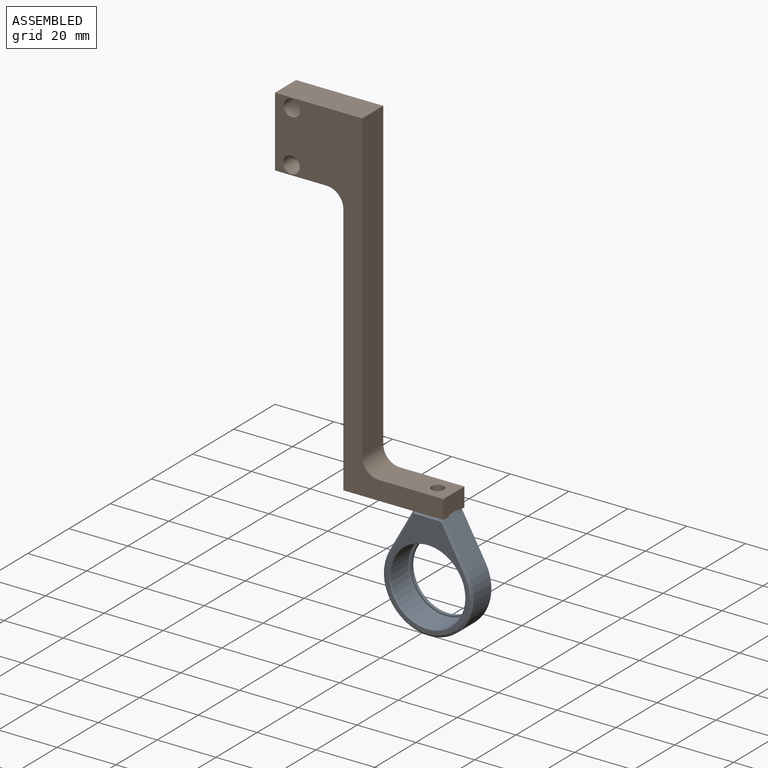
[diagram: assembled view]
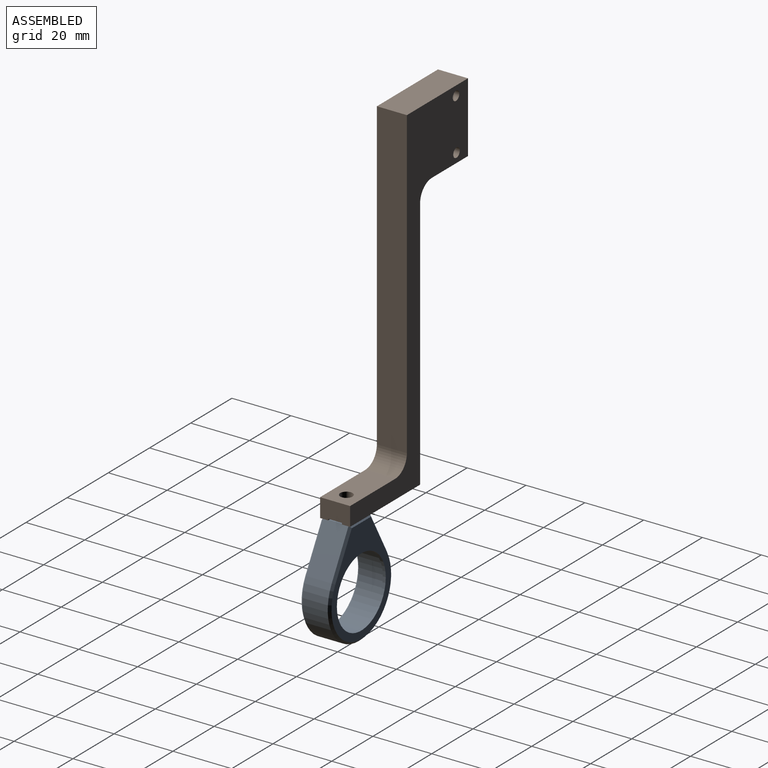
[diagram: assembled view, second angle]
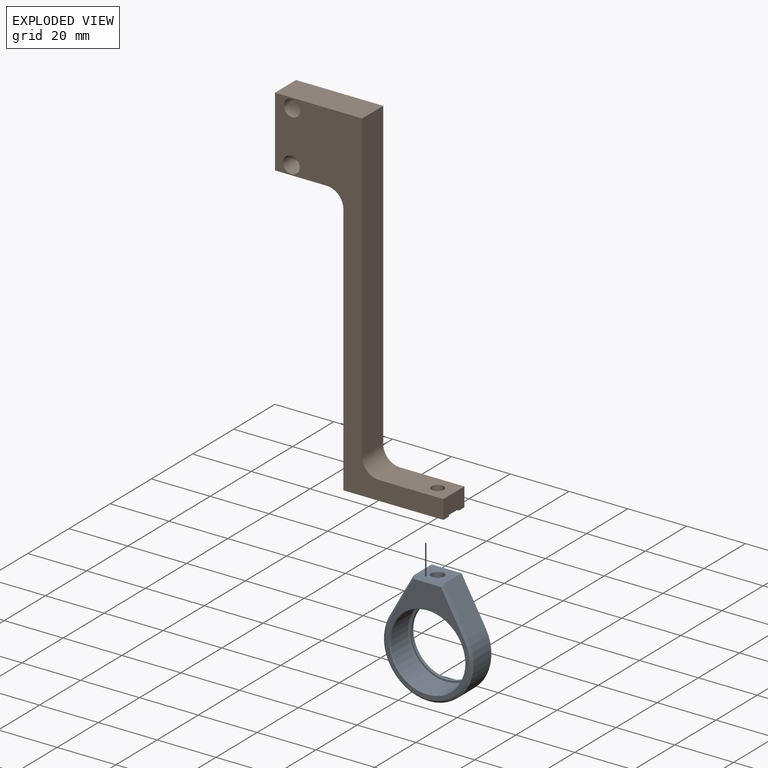
[diagram: exploded view]
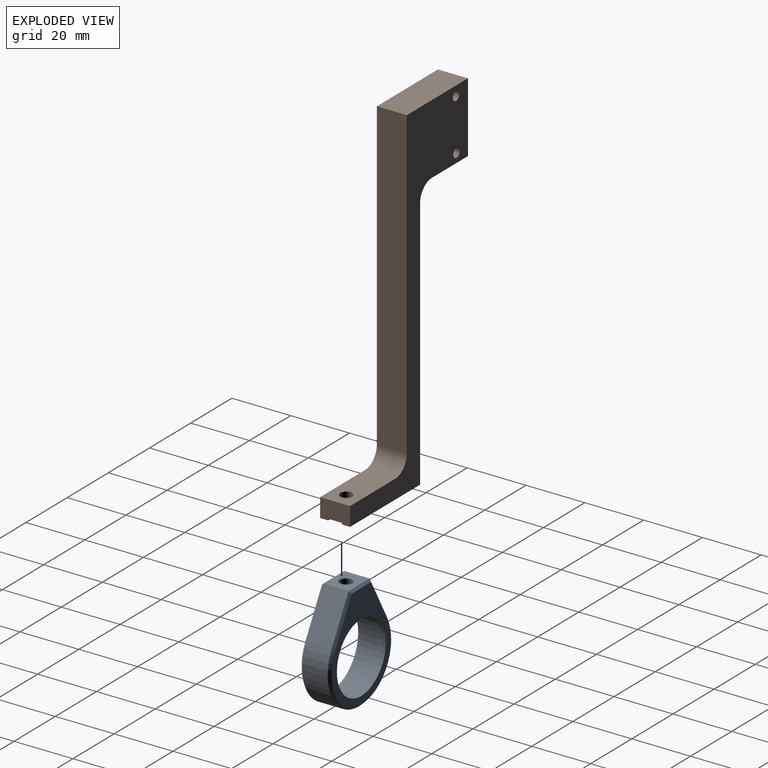
[diagram: exploded view, second angle]
ASSEMBLY  parts=2 mates=2
PART A: 222 faces, bbox 30.5x10.2x37.3 mm
  f0: plane 6.2x1.93mm, normal (0,-1,0), area 6.9mm2, adj f90,f91,f92,f93,f94,f95,f96,f97
  f1: plane 35.81x28.96mm, normal (0,-1,0), area 219.6mm2, adj f10,f11,f12,f13,f14,f15,f17,f18
  f2: cylinder r=11.87mm len=23.75mm, axis (0,-1,0), area 75.8mm2, adj f7,f8
  f3: plane 14.64x8.64mm, normal (0.87,0,-0.49), area 145mm2, adj f4,f6,f213,f217
  f4: plane 10.16x8.64mm, normal (0,0,-1), area 70.6mm2, adj f3,f5,f215,f219,f221
  f5: plane 14.64x8.64mm, normal (-0.87,0,-0.49), area 145mm2, adj f4,f6,f214,f218
  f6: cylinder r=15.24mm len=30.48mm, axis (0,-1,0), area 548mm2, adj f3,f5,f212,f216
  f7: plane 35.81x28.96mm, normal (0,1,0), area 328.9mm2, adj f2,f212,f213,f214,f215
  f8: plane 24.66x24.66mm, normal (0,-1,0), area 34.6mm2, adj f2,f211
  f9: cylinder r=12.71mm len=25.42mm, axis (0,-1,0), area 664.7mm2, adj f211,f220
  f10: plane 1.91x0.01mm, normal (1,0,0), area 0mm2, adj f1,f11,f15,f16
  f11: plane 0.17x0.01mm, normal (0,0,-1), area 0mm2, adj f1,f10,f12,f16
  f12: plane 1.71x0.01mm, normal (-1,0,0), area 0mm2, adj f1,f11,f13,f16
  f13: plane 0.73x0.01mm, normal (0,0,-1), area 0mm2, adj f1,f12,f14,f16
  f14: plane 0.2x0.01mm, normal (-1,0,0), area 0mm2, adj f1,f13,f15,f16
  f15: plane 0.9x0.01mm, normal (0,0,1), area 0mm2, adj f1,f10,f14,f16
  f16: plane 1.91x0.9mm, normal (0,-1,0), area 0.5mm2, adj f10,f11,f12,f13,f14,f15
  f17: plane 0.17x0.01mm, normal (0,0,1), area 0mm2, adj f1,f18,f29,f30
  f18: plane 1.91x0.25mm, normal (0.99,0,-0.13), area 0mm2, adj f1,f17,f19,f30
  f19: plane 0.02x0.01mm, normal (0,0,-1), area 0mm2, adj f1,f18,f20,f30
  f20: plane 1.56x0.79mm, normal (-0.89,0,-0.45), area 0mm2, adj f1,f19,f21,f30
  f21: plane 1.56x0.78mm, normal (0.89,0,-0.45), area 0mm2, adj f1,f20,f22,f30
  f22: plane 0.03x0.01mm, normal (0,0,-1), area 0mm2, adj f1,f21,f23,f30
  f23: plane 1.91x0.25mm, normal (-0.99,0,-0.13), area 0mm2, adj f1,f22,f24,f30
  f24: plane 0.17x0.01mm, normal (0,0,1), area 0mm2, adj f1,f23,f25,f30
  f25: plane 1.37x0.18mm, normal (0.99,0,0.13), area 0mm2, adj f1,f24,f26,f30
  f26: plane 1.37x0.69mm, normal (-0.89,0,0.45), area 0mm2, adj f1,f25,f27,f30
  f27: plane 0.04x0.01mm, normal (0,0,1), area 0mm2, adj f1,f26,f28,f30
  f28: plane 1.37x0.69mm, normal (0.89,0,0.45), area 0mm2, adj f1,f27,f29,f30
  f29: plane 1.37x0.18mm, normal (-0.99,0,0.13), area 0mm2, adj f1,f17,f28,f30
  f30: plane 2.13x1.91mm, normal (0,-1,0), area 1.1mm2, adj f17,f18,f19,f20,f21,f22,f23,f24
  f31: plane 1.91x0.01mm, normal (1,0,0), area 0mm2, adj f1,f32,f41,f42
  f32: plane 0.38x0.01mm, normal (0,0,-1), area 0mm2, adj f1,f31,f33,f42
  f33: extruded ~0.43x0.03mm, area 0mm2, adj f1,f32,f34,f42
  f34: extruded ~0.48x0.38mm, area 0mm2, adj f1,f33,f35,f42
  f35: extruded ~0.68x0.52mm, area 0mm2, adj f1,f34,f36,f42
  f36: plane 0.88x0.7mm, normal (-0.78,0,-0.62), area 0mm2, adj f1,f35,f37,f42
  f37: plane 0.21x0.01mm, normal (0,0,1), area 0mm2, adj f1,f36,f38,f42
  f38: plane 0.88x0.7mm, normal (0.78,0,0.62), area 0mm2, adj f1,f37,f39,f42
  f39: plane 0.14x0.01mm, normal (0,0,1), area 0mm2, adj f1,f38,f40,f42
  f40: plane 0.88x0.01mm, normal (-1,0,0), area 0mm2, adj f1,f39,f41,f42
  f41: plane 0.17x0.01mm, normal (0,0,1), area 0mm2, adj f1,f31,f40,f42
  f42: plane 1.91x1.22mm, normal (0,-1,0), area 1mm2, adj f31,f32,f33,f34,f35,f36,f37,f38
  f43: plane 0.36x0.01mm, normal (0,0,1), area 0mm2, adj f42,f44,f47,f48
  f44: extruded ~0.5x0.31mm, area 0mm2, adj f42,f43,f45,f48
  f45: extruded ~0.51x0.32mm, area 0mm2, adj f42,f44,f46,f48
  f46: plane 0.35x0.01mm, normal (-0.01,0,-1), area 0mm2, adj f42,f45,f47,f48
  f47: plane 0.64x0.01mm, normal (-1,0,0), area 0mm2, adj f42,f43,f46,f48
  f48: plane 0.86x0.64mm, normal (0,-1,0), area 0.5mm2, adj f43,f44,f45,f46,f47
  f49: plane 0.2x0.11mm, normal (0.87,0,-0.5), area 0mm2, adj f1,f50,f54,f55
  f50: plane 0.35x0.01mm, normal (0,0,-1), area 0mm2, adj f1,f49,f51,f55
  f51: plane 1.91x0.01mm, normal (-1,0,0), area 0mm2, adj f1,f50,f52,f55
  f52: plane 0.17x0.01mm, normal (0,0,1), area 0mm2, adj f1,f51,f53,f55
  f53: plane 1.71x0.01mm, normal (1,0,0), area 0mm2, adj f1,f52,f54,f55
  f54: plane 0.29x0.01mm, normal (0,0,1), area 0mm2, adj f1,f49,f53,f55
  f55: plane 1.91x0.46mm, normal (0,-1,0), area 0.4mm2, adj f49,f50,f51,f52,f53,f54
  f56: plane 2.03x0mm, normal (-1,0,0), area 0mm2, adj f1,f57,f73,f74
  f57: plane 0.53x0mm, normal (0,0,1), area 0mm2, adj f1,f56,f58,f74
  f58: plane 0.84x0mm, normal (1,0,0), area 0mm2, adj f1,f57,f59,f74
  f59: plane 0.7x0mm, normal (0,0,1), area 0mm2, adj f1,f58,f60,f74
  f60: plane 0.84x0mm, normal (-1,0,0), area 0mm2, adj f1,f59,f61,f74
  f61: plane 0.53x0mm, normal (0,0,1), area 0mm2, adj f1,f60,f62,f74
  f62: plane 1.58x0mm, normal (1,0,0), area 0mm2, adj f1,f61,f63,f74
  f63: plane 0.55x0mm, normal (0,0,1), area 0mm2, adj f1,f62,f64,f74
  f64: plane 1.58x0mm, normal (-1,0,0), area 0mm2, adj f1,f63,f65,f74
  f65: plane 0.53x0mm, normal (0,0,1), area 0mm2, adj f1,f64,f66,f74
  f66: plane 1.58x0mm, normal (1,0,0), area 0mm2, adj f1,f65,f67,f74
  f67: plane 0.61x0mm, normal (0,0,1), area 0mm2, adj f1,f66,f68,f74
  f68: plane 0.46x0mm, normal (1,0,0), area 0mm2, adj f1,f67,f69,f74
  f69: plane 2.22x0mm, normal (0,0,-1), area 0mm2, adj f1,f68,f70,f74
  f70: plane 0.74x0mm, normal (-1,0,0), area 0mm2, adj f1,f69,f71,f74
  f71: plane 0.7x0mm, normal (0,0,-1), area 0mm2, adj f1,f70,f72,f74
  f72: plane 0.74x0mm, normal (1,0,0), area 0mm2, adj f1,f71,f73,f74
  f73: plane 0.53x0mm, normal (0,0,-1), area 0mm2, adj f1,f56,f72,f74
  f74: plane 3.45x2.03mm, normal (0,-1,0), area 4.1mm2, adj f56,f57,f58,f59,f60,f61,f62,f63
  f75: extruded ~0.6x0.47mm, area 0mm2, adj f76,f82,f83,f84
  f76: extruded ~0.6x0.47mm, area 0mm2, adj f75,f77,f83,f84
  f77: extruded ~0.6x0.47mm, area 0mm2, adj f76,f82,f83,f84
  f78: extruded ~1.02x1.01mm, area 0mm2, adj f1,f79,f81,f83
  f79: extruded ~1.02x1mm, area 0mm2, adj f1,f78,f80,f83
  f80: extruded ~1.02x1mm, area 0mm2, adj f1,f79,f81,f83
  f81: extruded ~1.01x1mm, area 0mm2, adj f1,f78,f80,f83
  f82: extruded ~0.6x0.47mm, area 0mm2, adj f75,f77,f83,f84
  f83: plane 2.03x2.01mm, normal (0,-1,0), area 2.3mm2, adj f75,f76,f77,f78,f79,f80,f81,f82
  f84: plane 1.21x0.95mm, normal (0,-1,0), area 0.9mm2, adj f75,f76,f77,f82
  f85: extruded ~0.26x0.09mm, area 0mm2, adj f86,f168,f169,f173
  f86: extruded ~0.44x0.19mm, area 0mm2, adj f85,f168,f169,f173
  f87: extruded ~0.15x0.09mm, area 0mm2, adj f88,f163,f169,f172
  f88: extruded ~0.16x0.04mm, area 0mm2, adj f87,f89,f169,f172
  f89: extruded ~0.32x0.13mm, area 0mm2, adj f88,f163,f169,f172
  f90: extruded ~0.53x0.53mm, area 0mm2, adj f0,f91,f164,f169
  f91: extruded ~0.53x0.24mm, area 0mm2, adj f0,f90,f92,f169
  f92: extruded ~0.23x0.16mm, area 0mm2, adj f0,f91,f93,f169
  f93: extruded ~0.3x0.22mm, area 0mm2, adj f0,f92,f94,f169
  f94: plane 0.48x0mm, normal (0,0,-1), area 0mm2, adj f0,f93,f95,f169
  f95: extruded ~0.74x0.59mm, area 0mm2, adj f0,f94,f96,f169
  f96: extruded ~0.75x0.56mm, area 0mm2, adj f0,f95,f97,f169
  f97: extruded ~0.54x0.53mm, area 0mm2, adj f0,f96,f98,f169
  f98: extruded ~0.53x0.27mm, area 0mm2, adj f0,f97,f99,f169
  f99: extruded ~0.29x0.19mm, area 0mm2, adj f0,f98,f100,f169
  f100: extruded ~0.35x0.28mm, area 0mm2, adj f0,f99,f101,f169
  f101: plane 0.46x0mm, normal (0,0,1), area 0mm2, adj f0,f100,f102,f169
  f102: cylinder r=0.43mm len=0.39mm, axis (0,1,0), area 0mm2, adj f0,f101,f103,f169
  f103: extruded ~0.37x0.24mm, area 0mm2, adj f0,f102,f104,f169
  f104: extruded ~0.66x0.46mm, area 0mm2, adj f0,f103,f105,f169
  f105: plane 0.86x0mm, normal (0,0,1), area 0mm2, adj f0,f104,f106,f169
  f106: plane 1.71x0mm, normal (-1,0,0), area 0mm2, adj f0,f105,f107,f169
  f107: plane 1.71x0.65mm, normal (0.94,0,0.35), area 0mm2, adj f0,f106,f108,f169
  f108: plane 0.49x0mm, normal (0,0,1), area 0mm2, adj f0,f107,f109,f169
  f109: plane 1.42x0.53mm, normal (-0.94,0,0.35), area 0mm2, adj f0,f108,f110,f169
  f110: plane 0.88x0mm, normal (0,0,1), area 0mm2, adj f0,f109,f111,f169
  f111: plane 1.42x0mm, normal (1,0,0), area 0mm2, adj f0,f110,f112,f169
  f112: plane 0.48x0mm, normal (0,0,1), area 0mm2, adj f0,f111,f113,f169
  f113: plane 1.83x0mm, normal (-1,0,0), area 0mm2, adj f0,f112,f114,f169
  f114: plane 1.7x0mm, normal (0,0,-1), area 0mm2, adj f0,f113,f115,f169
  f115: plane 0.31x0.14mm, normal (0.91,0,-0.41), area 0mm2, adj f0,f114,f116,f169
  f116: plane 0.59x0mm, normal (0,0,-1), area 0mm2, adj f0,f115,f117,f169
  f117: plane 0.31x0.14mm, normal (-0.92,0,-0.4), area 0mm2, adj f0,f116,f118,f169
  f118: plane 1.34x0mm, normal (0,0,-1), area 0mm2, adj f0,f117,f119,f169
  f119: extruded ~0.71x0.47mm, area 0mm2, adj f0,f118,f120,f169
  f120: extruded ~0.78x0.53mm, area 0mm2, adj f0,f119,f164,f169
  f121: extruded ~0.16x0.11mm, area 0mm2, adj f122,f165,f169,f171
  f122: extruded ~0.31x0.2mm, area 0mm2, adj f121,f123,f169,f171
  f123: plane 0.46x0mm, normal (0,0,-1), area 0mm2, adj f122,f124,f169,f171
  f124: plane 0.09x0.03mm, normal (0.27,0,0.96), area 0mm2, adj f123,f165,f169,f171
  f125: extruded ~0.27x0.22mm, area 0mm2, adj f126,f166,f169,f170
  f126: plane 0.42x0mm, normal (0,0,1), area 0mm2, adj f125,f127,f169,f170
  f127: plane 0.46x0mm, normal (-1,0,0), area 0mm2, adj f126,f128,f169,f170
  f128: plane 0.45x0mm, normal (0,0,-1), area 0mm2, adj f127,f166,f169,f170
  f129: extruded ~0.42x0.3mm, area 0mm2, adj f1,f130,f167,f169
  f130: plane 0.4x0mm, normal (0,0,1), area 0mm2, adj f1,f129,f131,f169
  f131: plane 0.74x0mm, normal (-1,0,0), area 0mm2, adj f1,f130,f132,f169
  f132: plane 0.53x0mm, normal (0,0,1), area 0mm2, adj f1,f131,f133,f169
  f133: plane 2.03x0mm, normal (1,0,0), area 0mm2, adj f1,f132,f134,f169
  f134: plane 1.04x0mm, normal (0,0,-1), area 0mm2, adj f1,f133,f135,f169
  f135: extruded ~0.71x0.57mm, area 0mm2, adj f1,f134,f136,f169
  f136: extruded ~0.51x0.32mm, area 0mm2, adj f1,f135,f137,f169
  f137: plane 0.01x0mm, normal (-1,0,0), area 0mm2, adj f1,f136,f138,f169
  f138: extruded ~0.49x0.3mm, area 0mm2, adj f1,f137,f139,f169
  f139: extruded ~0.36x0.05mm, area 0mm2, adj f1,f138,f140,f169
  f140: plane 1.94x0mm, normal (1,0,0), area 0mm2, adj f1,f139,f141,f169
  f141: plane 0.69x0mm, normal (0,0,-1), area 0mm2, adj f1,f140,f142,f169
  f142: plane 1.45x0mm, normal (-1,0,0), area 0mm2, adj f1,f141,f143,f169
  f143: plane 0.7x0mm, normal (0,0,-1), area 0mm2, adj f1,f142,f144,f169
  f144: plane 1.45x0.55mm, normal (0.94,0,-0.35), area 0mm2, adj f1,f143,f145,f169
  f145: plane 0.63x0mm, normal (0,0,-1), area 0mm2, adj f1,f144,f146,f169
  f146: plane 1.27x0.47mm, normal (-0.94,0,-0.35), area 0mm2, adj f1,f145,f147,f169
  f147: plane 1.27x0mm, normal (1,0,0), area 0mm2, adj f1,f146,f148,f169
  f148: plane 0.9x0mm, normal (0,0,-1), area 0mm2, adj f1,f147,f149,f169
  f149: extruded ~0.79x0.37mm, area 0mm2, adj f1,f148,f150,f169
  f150: extruded ~0.78x0.39mm, area 0mm2, adj f1,f149,f151,f169
  f151: extruded ~0.85x0.77mm, area 0mm2, adj f1,f150,f152,f169
  f152: plane 0.56x0mm, normal (0,0,1), area 0mm2, adj f1,f151,f153,f169
  f153: plane 0.01x0mm, normal (-0.25,0,-0.97), area 0mm2, adj f1,f152,f154,f169
  f154: extruded ~0.64x0.6mm, area 0mm2, adj f1,f153,f155,f169
  f155: extruded ~0.86x0.69mm, area 0mm2, adj f1,f154,f156,f169
  f156: extruded ~0.82x0.38mm, area 0mm2, adj f1,f155,f157,f169
  f157: extruded ~0.6x0.32mm, area 0mm2, adj f1,f156,f158,f169
  f158: plane 1.52x0mm, normal (0,0,1), area 0mm2, adj f1,f157,f159,f169
  f159: plane 0.3x0.12mm, normal (0.93,0,0.36), area 0mm2, adj f1,f158,f160,f169
  f160: plane 0.49x0mm, normal (0,0,1), area 0mm2, adj f1,f159,f161,f169
  f161: plane 0.3x0.12mm, normal (-0.93,0,0.37), area 0mm2, adj f1,f160,f162,f169
  f162: plane 2.37x0mm, normal (0,0,1), area 0mm2, adj f1,f161,f167,f169
  f163: cylinder r=0.42mm len=0.08mm, axis (0,1,0), area 0mm2, adj f87,f89,f169,f172
  f164: extruded ~0.8x0.64mm, area 0mm2, adj f0,f90,f120,f169
  f165: extruded ~0.46x0.45mm, area 0mm2, adj f121,f124,f169,f171
  f166: extruded ~0.25x0.24mm, area 0mm2, adj f125,f128,f169,f170
  f167: extruded ~0.32x0.06mm, area 0mm2, adj f1,f129,f162,f169
  f168: extruded ~0.26x0.18mm, area 0mm2, adj f85,f86,f169,f173
  f169: plane 8.19x2.11mm, normal (0,-1,0), area 5.3mm2, adj f85,f86,f87,f88,f89,f90,f91,f92
  f170: plane 0.69x0.46mm, normal (0,-1,0), area 0.3mm2, adj f125,f126,f127,f128,f166
  f171: plane 0.66x0.47mm, normal (0,-1,0), area 0.1mm2, adj f121,f122,f123,f124,f165
  f172: plane 0.32x0.17mm, normal (0,-1,0), area 0mm2, adj f87,f88,f89,f163
  f173: plane 0.45x0.3mm, normal (0,-1,0), area 0.1mm2, adj f85,f86,f168
  f174: plane 0.55x0mm, normal (0,0,1), area 0mm2, adj f0,f175,f180,f181
  f175: plane 0.73x0.24mm, normal (0.95,0,-0.31), area 0mm2, adj f0,f174,f176,f181
  f176: plane 0.07x0mm, normal (0,0,-1), area 0mm2, adj f0,f175,f180,f181
  f177: plane 0.44x0.14mm, normal (-0.95,0,0.31), area 0mm2, adj f178,f179,f181,f182
  f178: plane 0.28x0mm, normal (0,0,-1), area 0mm2, adj f177,f179,f181,f182
  f179: plane 0.44x0.14mm, normal (0.95,0,0.3), area 0mm2, adj f177,f178,f181,f182
  f180: plane 0.73x0.23mm, normal (-0.95,0,-0.3), area 0mm2, adj f0,f174,f176,f181
  f181: plane 0.73x0.55mm, normal (0,-1,0), area 0.2mm2, adj f174,f175,f176,f177,f178,f179,f180
  f182: plane 0.44x0.28mm, normal (0,-1,0), area 0.1mm2, adj f177,f178,f179
  f183: extruded ~0.22x0.22mm, area 0mm2, adj f0,f184,f192,f193
  f184: plane 0.43x0mm, normal (0,0,1), area 0mm2, adj f0,f183,f185,f193
  f185: plane 0.44x0mm, normal (1,0,0), area 0mm2, adj f0,f184,f186,f193
  f186: plane 0.43x0mm, normal (0,0,-1), area 0mm2, adj f0,f185,f192,f193
  f187: extruded ~0.16x0.13mm, area 0mm2, adj f188,f191,f193,f194
  f188: plane 0.3x0mm, normal (0,0,1), area 0mm2, adj f187,f189,f193,f194
  f189: plane 0.26x0mm, normal (-1,0,0), area 0mm2, adj f188,f190,f193,f194
  f190: plane 0.3x0mm, normal (0,0,-1), area 0mm2, adj f189,f191,f193,f194
  f191: extruded ~0.16x0.13mm, area 0mm2, adj f187,f190,f193,f194
  f192: extruded ~0.22x0.22mm, area 0mm2, adj f0,f183,f186,f193
  f193: plane 0.65x0.44mm, normal (0,-1,0), area 0.2mm2, adj f183,f184,f185,f186,f187,f188,f189,f190
  f194: plane 0.45x0.26mm, normal (0,-1,0), area 0.1mm2, adj f187,f188,f189,f190,f191
  f195: extruded ~0.25x0.25mm, area 0mm2, adj f0,f196,f204,f205
  f196: plane 0.47x0mm, normal (0,0,1), area 0mm2, adj f0,f195,f197,f205
  f197: plane 0.51x0mm, normal (1,0,0), area 0mm2, adj f0,f196,f198,f205
  f198: plane 0.47x0mm, normal (0,0,-1), area 0mm2, adj f0,f197,f204,f205
  f199: extruded ~0.19x0.17mm, area 0mm2, adj f200,f203,f205,f206
  f200: plane 0.36x0mm, normal (0,0,1), area 0mm2, adj f199,f201,f205,f206
  f201: plane 0.33x0mm, normal (-1,0,0), area 0mm2, adj f200,f202,f205,f206
  f202: plane 0.36x0mm, normal (0,0,-1), area 0mm2, adj f201,f203,f205,f206
  f203: extruded ~0.19x0.16mm, area 0mm2, adj f199,f202,f205,f206
  f204: extruded ~0.26x0.25mm, area 0mm2, adj f0,f195,f198,f205
  f205: plane 0.72x0.51mm, normal (0,-1,0), area 0.2mm2, adj f195,f196,f197,f198,f199,f200,f201,f202
  f206: plane 0.54x0.33mm, normal (0,-1,0), area 0.2mm2, adj f199,f200,f201,f202,f203
  f207: cone r=1.73mm half-angle=77.5deg, axis (0,0,-1), area 9.6mm2, adj f208
  f208: cylinder r=1.73mm len=3.45mm, axis (0,0,-1), area 17.9mm2, adj f207,f209
  f209: plane 4.17x4.17mm, normal (0,0,-1), area 4.3mm2, adj f208,f210
  f210: cylinder r=2.08mm len=6.1mm, axis (0,0,-1), area 79.8mm2, adj f209,f221
  f211: torus R=12.33mm, axis (0,-1,0), area 47.3mm2, adj f8,f9
  f212: cone r=15.24mm half-angle=45deg, axis (0,-1,0), area 66.7mm2, adj f6,f7,f213,f214
  f213: plane 15.02x8.66mm, normal (0.62,0.71,-0.35), area 17.9mm2, adj f3,f7,f212,f215
  f214: plane 15.02x8.66mm, normal (-0.62,0.71,-0.35), area 17.9mm2, adj f5,f7,f212,f215
  f215: plane 10.16x0.76mm, normal (0,0.71,-0.71), area 10.5mm2, adj f4,f7,f213,f214
  f216: cone r=14.48mm half-angle=45deg, axis (0,1,0), area 66.7mm2, adj f1,f6,f217,f218
  f217: plane 15.02x8.66mm, normal (0.62,-0.71,-0.35), area 17.9mm2, adj f1,f3,f216,f219
  f218: plane 15.02x8.66mm, normal (-0.62,-0.71,-0.35), area 17.9mm2, adj f1,f5,f216,f219
  f219: plane 10.16x0.76mm, normal (0,-0.71,-0.71), area 10.5mm2, adj f1,f4,f217,f218
  f220: cone r=12.71mm half-angle=30deg, axis (0,-1,0), area 41mm2, adj f1,f9
  f221: cone r=2.08mm half-angle=45deg, axis (0,0,-1), area 5mm2, adj f4,f210
PART B: 23 faces, bbox 57.3x10.2x116 mm
  f0: plane 10.2x6.4mm, normal (1,0,0), area 62.9mm2, adj f3,f4,f14,f15,f17,f19,f20
  f1: plane 103.9x10.2mm, normal (1,0,0), area 1059.8mm2, adj f3,f4,f5,f16
  f2: plane 86.4x10.2mm, normal (-1,0,0), area 881.3mm2, adj f3,f4,f8,f14
  f3: plane 116x57.25mm, normal (0,-1,0), area 1438.5mm2, adj f0,f1,f2,f5,f6,f7,f8,f9
  f4: plane 116x57.25mm, normal (0,1,0), area 1473.1mm2, adj f0,f1,f2,f5,f6,f7,f8,f13
  f5: plane 29.65x10.2mm, normal (0,0,1), area 302.4mm2, adj f1,f3,f4,f6
  f6: plane 23.9x10.2mm, normal (-1,0,0), area 243.8mm2, adj f3,f4,f5,f7
  f7: plane 17.55x10.2mm, normal (0,0,-1), area 179mm2, adj f3,f4,f6,f8
  f8: cylinder r=5.7mm len=10.2mm, axis (0,1,0), area 91.3mm2, adj f2,f3,f4,f7
  f9: cylinder r=2.82mm len=6.45mm, axis (0,-1,0), area 114.5mm2, adj f3,f10
  f10: plane 5.65x5.65mm, normal (0,-1,0), area 17.3mm2, adj f9,f22
  f11: cylinder r=2.82mm len=6.45mm, axis (0,-1,0), area 114.5mm2, adj f3,f12
  f12: plane 5.65x5.65mm, normal (0,-1,0), area 17.3mm2, adj f11,f13
  f13: cylinder r=1.57mm len=3.75mm, axis (0,-1,0), area 37.1mm2, adj f4,f12
  f14: plane 34x10.2mm, normal (0,0,-1), area 290.5mm2, adj f0,f2,f3,f4,f17,f18,f19
  f15: plane 21.9x10.2mm, normal (0,0,1), area 209.9mm2, adj f0,f3,f4,f16,f21
  f16: cylinder r=5.7mm len=10.2mm, axis (0,-1,0), area 91.3mm2, adj f1,f3,f4,f15
  f17: plane 10.13x0.5mm, normal (0,1,0), area 5.1mm2, adj f0,f14,f18,f20
  f18: cylinder r=2.35mm len=4.7mm, axis (0,0,-1), area 3.7mm2, adj f14,f17,f19,f20
  f19: plane 10.13x0.5mm, normal (0,-1,0), area 5.1mm2, adj f0,f14,f18,f20
  f20: plane 12.48x4.7mm, normal (0,0,-1), area 42.8mm2, adj f0,f17,f18,f19,f21
  f21: cylinder r=2.08mm len=5.9mm, axis (0,0,-1), area 76.9mm2, adj f15,f20
  f22: cylinder r=1.57mm len=3.75mm, axis (0,-1,0), area 37.1mm2, adj f4,f10
PLACE A rot(axis=(0,1,0),180deg) t=(-29.59,-20.81,-14.68)mm
PLACE B t=(-58.09,-10.63,-20.18)mm
MATE parallel A.f4 <-> B.f14  axis (0,0,1) through (-24.51,-20.04,7.42)mm
MATE slider A.f207 <-> B.f21  axis (0,0,-1) through (-29.59,-15.73,7.17)mm
